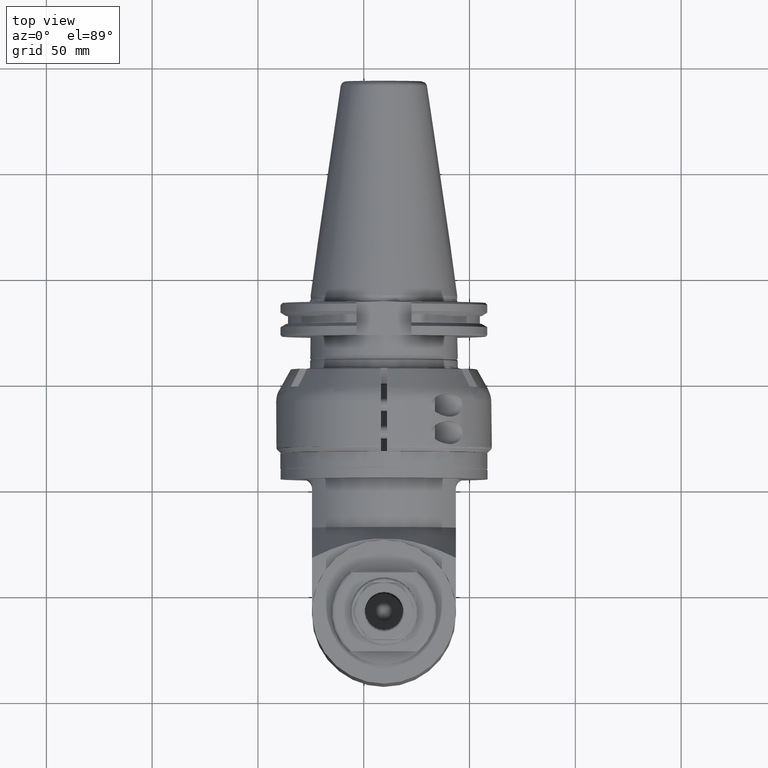
[diagram: clean part render]
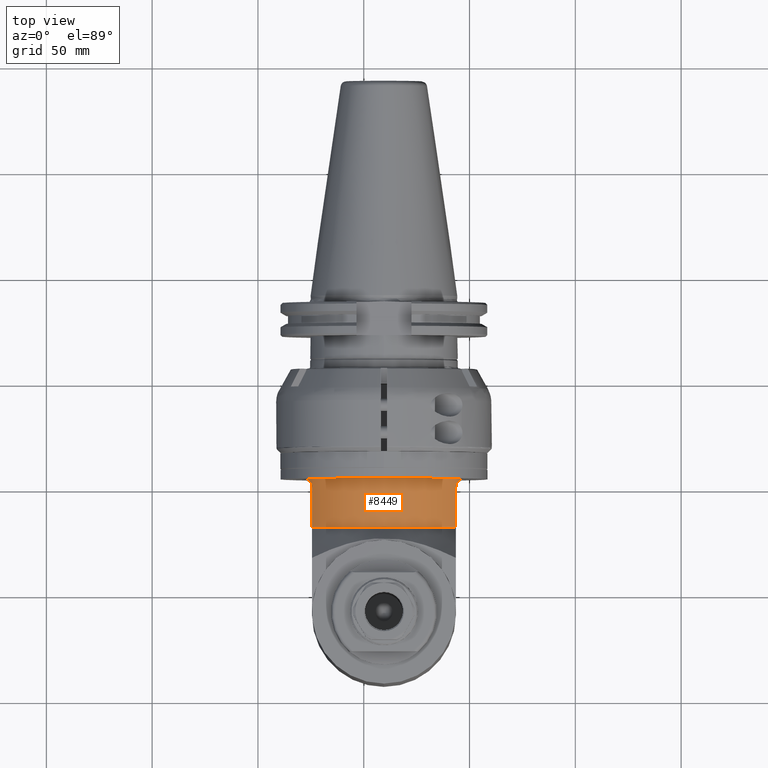
[diagram: same view with one face highlighted and labeled with its STEP entity id]
A machine part, top view. The second image highlights one B-rep face of the part: STEP entity #8449.
In plain terms, the highlighted cylindrical surface (partial cylindrical patch) has radius 40.5 mm, axis along (-0, 1, 0).
Its self-contained STEP definition (entity closure, byte-faithful):
#85=B_SPLINE_CURVE_WITH_KNOTS('',3,(#12957,#12958,#12959,#12960,#12961,
#12962,#12963,#12964,#12965,#12966,#12967,#12968,#12969,#12970,#12971,#12972),
 .UNSPECIFIED.,.F.,.F.,(4,2,2,2,2,2,2,4),(-5.76147187817445,-5.64444151416945,
-5.42525728801492,-5.20607306186039,-5.01760128448421,-4.88000325437293,
-4.8112042393173,-4.74240522426166),.UNSPECIFIED.);
#86=B_SPLINE_CURVE_WITH_KNOTS('',3,(#12974,#12975,#12976,#12977,#12978,
#12979,#12980,#12981,#12982,#12983,#12984,#12985,#12986,#12987,#12988,#12989),
 .UNSPECIFIED.,.F.,.F.,(4,2,2,2,2,2,2,4),(9.99644811374562E-13,0.0687990150566367,
0.137598030112275,0.275196060223551,0.46366783759973,0.682852063754259,
0.902036289908787,1.01906664302347),.UNSPECIFIED.);
#350=LINE('',#12830,#967);
#357=LINE('',#12864,#974);
#967=VECTOR('',#10098,19.20009963119);
#974=VECTOR('',#10117,19.20009963119);
#1583=CYLINDRICAL_SURFACE('',#9059,40.5);
#1816=FACE_OUTER_BOUND('',#2353,.T.);
#2353=EDGE_LOOP('',(#5664,#5665,#5666,#5667,#5668,#5669));
#2951=CIRCLE('',#9044,40.5);
#2959=CIRCLE('',#9060,40.5);
#3447=VERTEX_POINT('',#12827);
#3448=VERTEX_POINT('',#12829);
#3459=VERTEX_POINT('',#12859);
#3460=VERTEX_POINT('',#12863);
#3473=VERTEX_POINT('',#12924);
#3474=VERTEX_POINT('',#12925);
#4288=EDGE_CURVE('',#3448,#3447,#350,.T.);
#4302=EDGE_CURVE('',#3460,#3459,#357,.T.);
#4321=EDGE_CURVE('',#3473,#3474,#2951,.T.);
#4336=EDGE_CURVE('',#3473,#3460,#85,.T.);
#4337=EDGE_CURVE('',#3448,#3459,#2959,.T.);
#4338=EDGE_CURVE('',#3447,#3474,#86,.T.);
#5664=ORIENTED_EDGE('',*,*,#4321,.F.);
#5665=ORIENTED_EDGE('',*,*,#4336,.T.);
#5666=ORIENTED_EDGE('',*,*,#4302,.T.);
#5667=ORIENTED_EDGE('',*,*,#4337,.F.);
#5668=ORIENTED_EDGE('',*,*,#4288,.T.);
#5669=ORIENTED_EDGE('',*,*,#4338,.T.);
#8449=ADVANCED_FACE('',(#1816),#1583,.T.);
#9044=AXIS2_PLACEMENT_3D('',#12926,#10148,#10149);
#9059=AXIS2_PLACEMENT_3D('',#12956,#10185,#10186);
#9060=AXIS2_PLACEMENT_3D('',#12973,#10187,#10188);
#10098=DIRECTION('',(9.853178214179E-14,1.,0.));
#10117=DIRECTION('',(0.,-1.,-4.588898022755E-14));
#10148=DIRECTION('center_axis',(0.,1.,0.));
#10149=DIRECTION('ref_axis',(0.345899400644989,0.,0.93827160493827));
#10185=DIRECTION('center_axis',(0.,1.,0.));
#10186=DIRECTION('ref_axis',(1.,0.,0.));
#10187=DIRECTION('center_axis',(0.,-1.,0.));
#10188=DIRECTION('ref_axis',(1.,0.,0.));
#12827=CARTESIAN_POINT('',(11.16572287258,36.50000000001,-34.));
#12829=CARTESIAN_POINT('',(11.16572287258,17.29990036882,-34.));
#12830=CARTESIAN_POINT('',(11.16572287258,17.29990036882,-34.));
#12859=CARTESIAN_POINT('',(11.16572287258,17.29990036882,34.));
#12863=CARTESIAN_POINT('',(11.16572287258,36.50000000001,34.));
#12864=CARTESIAN_POINT('',(11.16572287258,36.50000000001,34.));
#12924=CARTESIAN_POINT('',(3.16896751404,40.5,38.));
#12925=CARTESIAN_POINT('',(3.168967514039,40.5,-38.));
#12926=CARTESIAN_POINT('Origin',(-10.83995821208,40.5,0.));
#12956=CARTESIAN_POINT('Origin',(-10.83995821208,24.60210073516,0.));
#12957=CARTESIAN_POINT('Ctrl Pts',(3.16896751404023,40.5,38.0000000000006));
#12958=CARTESIAN_POINT('Ctrl Pts',(3.54350906736114,40.5,37.8619230315317));
#12959=CARTESIAN_POINT('Ctrl Pts',(3.91199775090207,40.4928532681033,37.7197790535789));
#12960=CARTESIAN_POINT('Ctrl Pts',(4.95092532915038,40.4481273460132,37.3018892787617));
#12961=CARTESIAN_POINT('Ctrl Pts',(5.6855747094731,40.3851351199831,36.9835108348097));
#12962=CARTESIAN_POINT('Ctrl Pts',(7.11437332892419,40.1436302363452,36.3113658391003));
#12963=CARTESIAN_POINT('Ctrl Pts',(7.80834817535256,39.9634172261653,35.95784062867));
#12964=CARTESIAN_POINT('Ctrl Pts',(8.93679505285462,39.5148696665916,35.3480085657577));
#12965=CARTESIAN_POINT('Ctrl Pts',(9.52869382061726,39.1938420636128,35.0089762653419));
#12966=CARTESIAN_POINT('Ctrl Pts',(10.2861346627283,38.5598707812258,34.5554192139498));
#12967=CARTESIAN_POINT('Ctrl Pts',(10.5975561214754,38.2160269969553,34.3620559867154));
#12968=CARTESIAN_POINT('Ctrl Pts',(10.9278569468158,37.6160832473745,34.1530261863872));
#12969=CARTESIAN_POINT('Ctrl Pts',(11.0159026360351,37.4021488762785,34.096573851413));
#12970=CARTESIAN_POINT('Ctrl Pts',(11.1348518566622,36.95878122994,34.0200341599828));
#12971=CARTESIAN_POINT('Ctrl Pts',(11.1657228725854,36.7293300501857,34.));
#12972=CARTESIAN_POINT('Ctrl Pts',(11.1657228725854,36.5,34.));
#12973=CARTESIAN_POINT('Origin',(-10.83995821208,17.29990036882,0.));
#12974=CARTESIAN_POINT('Ctrl Pts',(11.1657228725854,36.5,-34.));
#12975=CARTESIAN_POINT('Ctrl Pts',(11.1657228725845,36.7293300501857,-34.0000000000006));
#12976=CARTESIAN_POINT('Ctrl Pts',(11.1348518566622,36.95878122994,-34.0200341599828));
#12977=CARTESIAN_POINT('Ctrl Pts',(11.0159026360351,37.4021488762785,-34.096573851413));
#12978=CARTESIAN_POINT('Ctrl Pts',(10.9278569468158,37.6160832473745,-34.1530261863872));
#12979=CARTESIAN_POINT('Ctrl Pts',(10.5975561214754,38.2160269969553,-34.3620559867154));
#12980=CARTESIAN_POINT('Ctrl Pts',(10.2861346627283,38.5598707812258,-34.5554192139498));
#12981=CARTESIAN_POINT('Ctrl Pts',(9.52869382061726,39.1938420636128,-35.0089762653419));
#12982=CARTESIAN_POINT('Ctrl Pts',(8.93679505285462,39.5148696665916,-35.3480085657577));
#12983=CARTESIAN_POINT('Ctrl Pts',(7.80834817535256,39.9634172261653,-35.95784062867));
#12984=CARTESIAN_POINT('Ctrl Pts',(7.11437332892419,40.1436302363452,-36.3113658391003));
#12985=CARTESIAN_POINT('Ctrl Pts',(5.6855747094731,40.3851351199831,-36.9835108348097));
#12986=CARTESIAN_POINT('Ctrl Pts',(4.95092532915038,40.4481273460132,-37.3018892787617));
#12987=CARTESIAN_POINT('Ctrl Pts',(3.91199778455394,40.4928532666546,-37.719779040043));
#12988=CARTESIAN_POINT('Ctrl Pts',(3.54350909498216,40.5,-37.8619230213491));
#12989=CARTESIAN_POINT('Ctrl Pts',(3.16896751403935,40.5,-38.0000000000009));